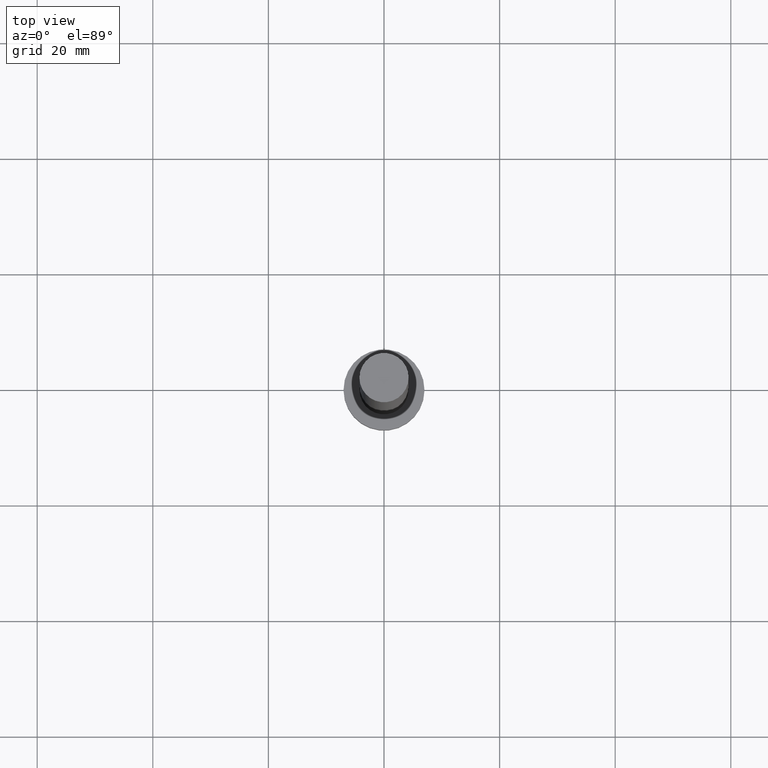
[diagram: clean part render]
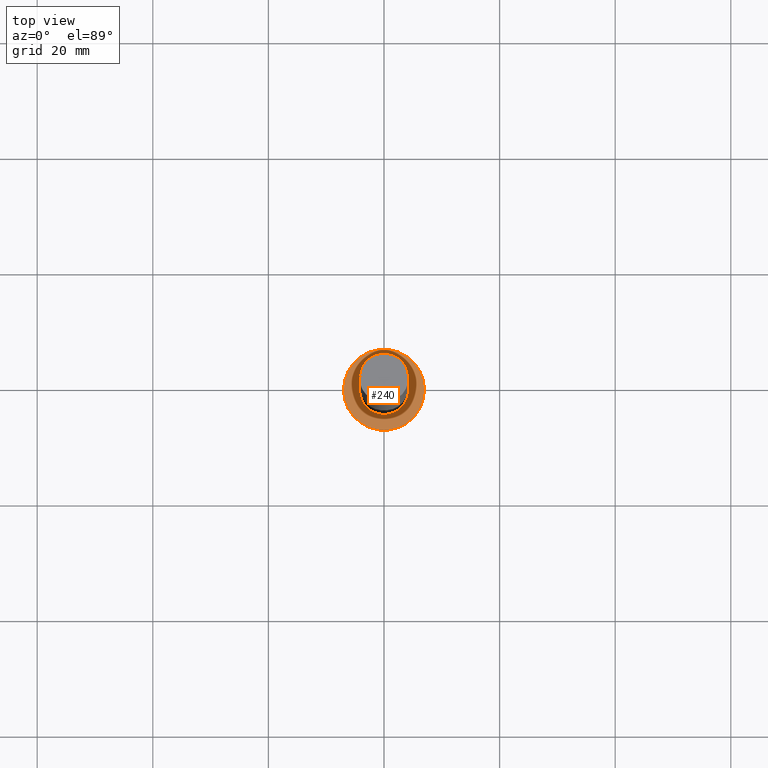
[diagram: same view with one face highlighted and labeled with its STEP entity id]
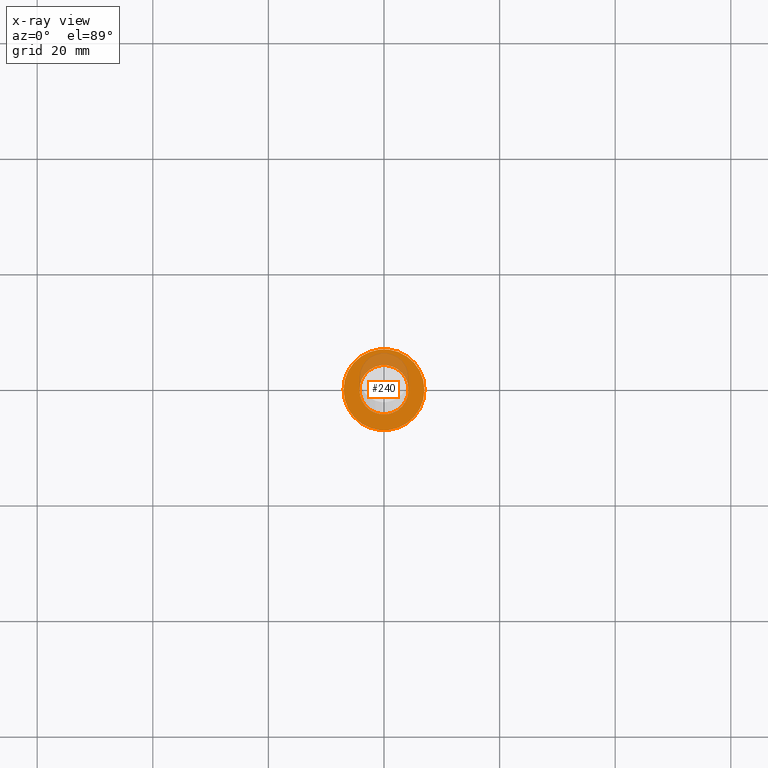
[diagram: x-ray of the same camera — body ghosted, the highlighted face saturated]
A machine part, top view. The second image highlights one B-rep face of the part: STEP entity #240.
The next image is the same camera in x-ray: the body ghosted, the highlighted face saturated — about 18% of this face is hidden behind the body in this view.
In plain terms, the highlighted planar face has unit normal (0, 0, 1).
Its self-contained STEP definition (entity closure, byte-faithful):
#1 = CIRCLE ( 'NONE', #147, 7.000000000000000000 ) ;
#13 = EDGE_CURVE ( 'NONE', #56, #19, #211, .T. ) ;
#18 = ORIENTED_EDGE ( 'NONE', *, *, #59, .F. ) ;
#19 = VERTEX_POINT ( 'NONE', #96 ) ;
#22 = DIRECTION ( 'NONE',  ( 0.000000000000000000, 0.000000000000000000, 1.000000000000000000 ) ) ;
#24 = PLANE ( 'NONE',  #61 ) ;
#35 = VERTEX_POINT ( 'NONE', #98 ) ;
#41 = ORIENTED_EDGE ( 'NONE', *, *, #251, .T. ) ;
#46 = CARTESIAN_POINT ( 'NONE',  ( 0.000000000000000000, 0.000000000000000000, 5.000000000000000000 ) ) ;
#53 = CARTESIAN_POINT ( 'NONE',  ( -7.000000000000000000, 0.000000000000000000, 5.000000000000000000 ) ) ;
#54 = CARTESIAN_POINT ( 'NONE',  ( 0.000000000000000000, 0.000000000000000000, 5.000000000000000000 ) ) ;
#56 = VERTEX_POINT ( 'NONE', #53 ) ;
#59 = EDGE_CURVE ( 'NONE', #35, #215, #69, .T. ) ;
#60 = DIRECTION ( 'NONE',  ( 1.000000000000000000, 0.000000000000000000, 0.000000000000000000 ) ) ;
#61 = AXIS2_PLACEMENT_3D ( 'NONE', #183, #101, #82 ) ;
#69 = CIRCLE ( 'NONE', #106, 4.250000000000000000 ) ;
#76 = DIRECTION ( 'NONE',  ( 0.000000000000000000, 0.000000000000000000, 1.000000000000000000 ) ) ;
#77 = CIRCLE ( 'NONE', #89, 4.250000000000000000 ) ;
#82 = DIRECTION ( 'NONE',  ( 1.000000000000000000, 0.000000000000000000, -0.000000000000000000 ) ) ;
#89 = AXIS2_PLACEMENT_3D ( 'NONE', #46, #22, #60 ) ;
#96 = CARTESIAN_POINT ( 'NONE',  ( 7.000000000000000000, 8.572527594031473190E-16, 5.000000000000000000 ) ) ;
#98 = CARTESIAN_POINT ( 'NONE',  ( 4.250000000000000000, 5.204748896376250699E-16, 5.000000000000000000 ) ) ;
#101 = DIRECTION ( 'NONE',  ( 0.000000000000000000, 0.000000000000000000, 1.000000000000000000 ) ) ;
#106 = AXIS2_PLACEMENT_3D ( 'NONE', #54, #76, #194 ) ;
#114 = ORIENTED_EDGE ( 'NONE', *, *, #13, .T. ) ;
#115 = AXIS2_PLACEMENT_3D ( 'NONE', #231, #154, #117 ) ;
#117 = DIRECTION ( 'NONE',  ( 1.000000000000000000, 0.000000000000000000, 0.000000000000000000 ) ) ;
#143 = FACE_BOUND ( 'NONE', #253, .T. ) ;
#145 = DIRECTION ( 'NONE',  ( 0.000000000000000000, 0.000000000000000000, 1.000000000000000000 ) ) ;
#147 = AXIS2_PLACEMENT_3D ( 'NONE', #165, #145, #225 ) ;
#154 = DIRECTION ( 'NONE',  ( 0.000000000000000000, 0.000000000000000000, 1.000000000000000000 ) ) ;
#165 = CARTESIAN_POINT ( 'NONE',  ( 0.000000000000000000, 0.000000000000000000, 5.000000000000000000 ) ) ;
#176 = EDGE_LOOP ( 'NONE', ( #114, #41 ) ) ;
#183 = CARTESIAN_POINT ( 'NONE',  ( 0.000000000000000000, 0.000000000000000000, 5.000000000000000000 ) ) ;
#191 = EDGE_CURVE ( 'NONE', #215, #35, #77, .T. ) ;
#194 = DIRECTION ( 'NONE',  ( 1.000000000000000000, 0.000000000000000000, 0.000000000000000000 ) ) ;
#211 = CIRCLE ( 'NONE', #115, 7.000000000000000000 ) ;
#215 = VERTEX_POINT ( 'NONE', #227 ) ;
#224 = FACE_OUTER_BOUND ( 'NONE', #176, .T. ) ;
#225 = DIRECTION ( 'NONE',  ( 1.000000000000000000, 0.000000000000000000, 0.000000000000000000 ) ) ;
#227 = CARTESIAN_POINT ( 'NONE',  ( -4.250000000000000000, 0.000000000000000000, 5.000000000000000000 ) ) ;
#231 = CARTESIAN_POINT ( 'NONE',  ( 0.000000000000000000, 0.000000000000000000, 5.000000000000000000 ) ) ;
#240 = ADVANCED_FACE ( 'NONE', ( #143, #224 ), #24, .T. ) ;
#251 = EDGE_CURVE ( 'NONE', #19, #56, #1, .T. ) ;
#252 = ORIENTED_EDGE ( 'NONE', *, *, #191, .F. ) ;
#253 = EDGE_LOOP ( 'NONE', ( #252, #18 ) ) ;